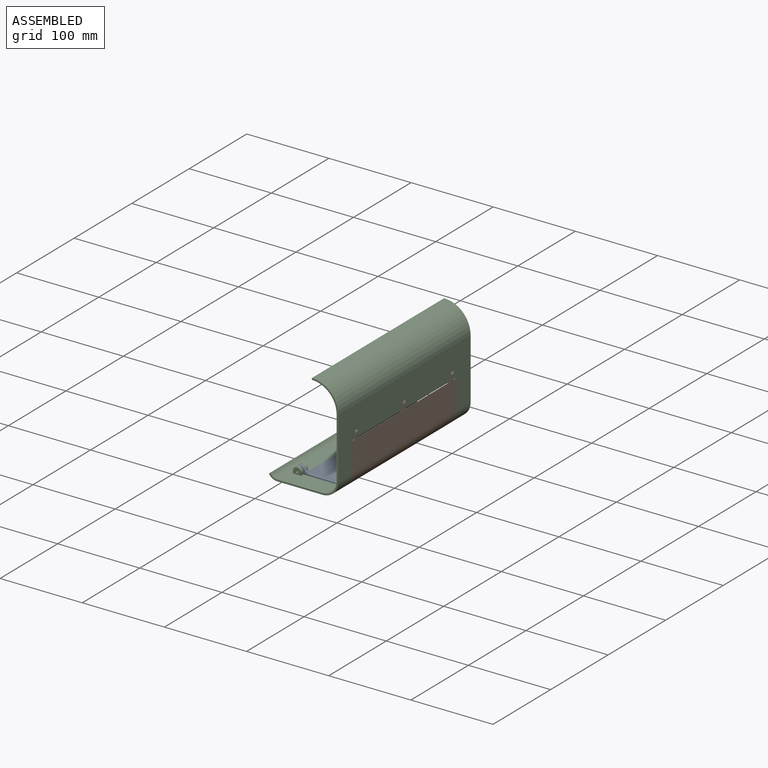
[diagram: assembled view]
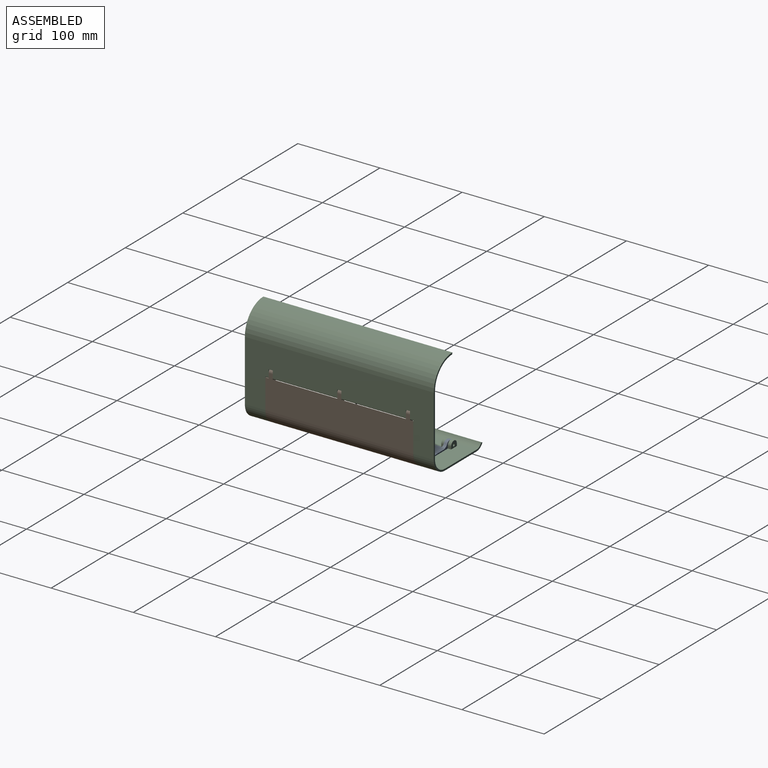
[diagram: assembled view, second angle]
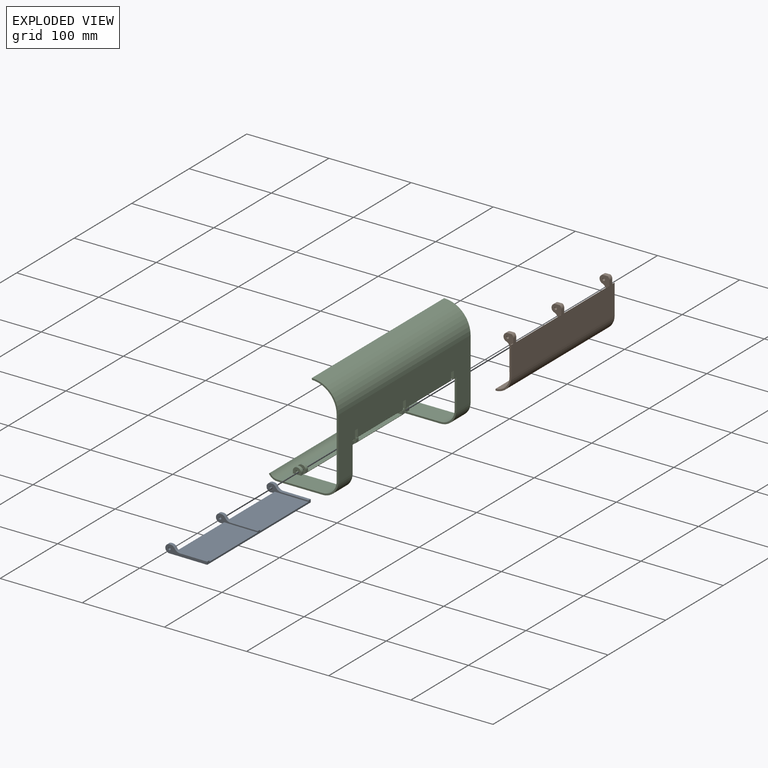
[diagram: exploded view]
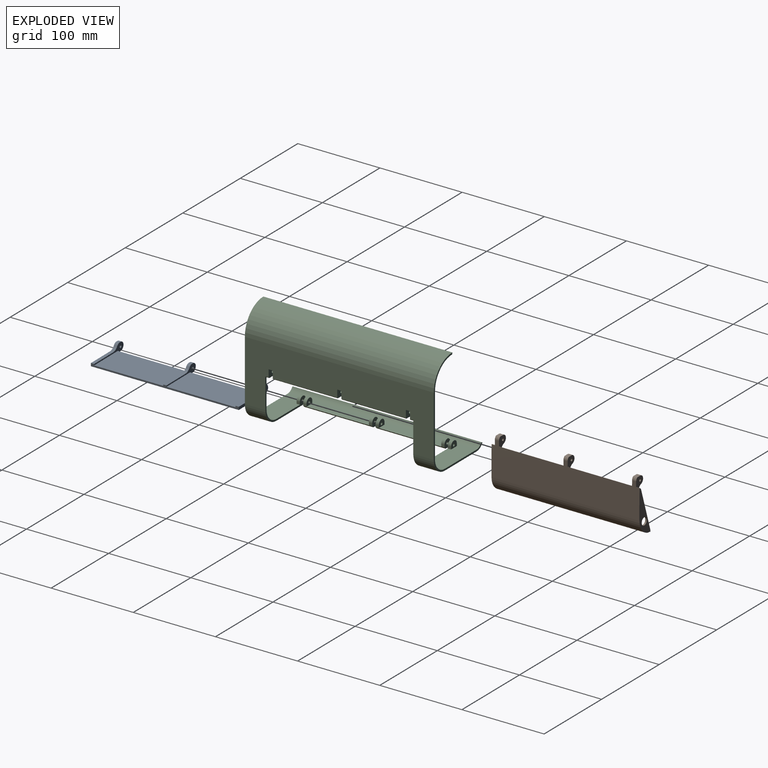
[diagram: exploded view, second angle]
ASSEMBLY  parts=3 mates=2
PART A: 30 faces, bbox 51x180x10 mm
  f0: plane 84x2mm, normal (-1,0,0), area 168mm2, adj f2,f7,f8,f14
  f1: plane 84x2mm, normal (-1,0,0), area 168mm2, adj f9,f12,f14,f15
  f2: plane 51x10mm, normal (0,-1,0), area 154.7mm2, adj f0,f3,f5,f6,f7,f14,f20,f23
  f3: plane 180x3.5mm, normal (1,0,0), area 378mm2, adj f2,f4,f5,f7,f8,f9,f11,f12
  f4: plane 51x10mm, normal (0,1,0), area 236.7mm2, adj f3,f5,f6,f14,f20,f23,f26,f29
  f5: plane 33.14x4mm, normal (0,0,1), area 132.6mm2, adj f2,f3,f4,f20
  f6: plane 4x1.6mm, normal (0,0,1), area 6.4mm2, adj f2,f4,f23,f29
  f7: plane 84x41mm, normal (0,0,1), area 3444mm2, adj f0,f2,f3,f8
  f8: plane 51x10mm, normal (0,1,0), area 154.7mm2, adj f0,f3,f7,f10,f11,f14,f19,f22
  f9: plane 51x10mm, normal (0,-1,0), area 154.7mm2, adj f1,f3,f10,f11,f12,f14,f19,f22
  f10: plane 4x1.6mm, normal (0,0,1), area 6.4mm2, adj f8,f9,f22,f28
  f11: plane 33.14x4mm, normal (0,0,1), area 132.6mm2, adj f3,f8,f9,f19
  f12: plane 84x41mm, normal (0,0,1), area 3444mm2, adj f1,f3,f9,f15
  f13: plane 51x10mm, normal (0,-1,0), area 236.7mm2, adj f3,f14,f16,f17,f18,f21,f24,f27
  f14: plane 180x46mm, normal (0,0,-1), area 7440mm2, adj f0,f1,f2,f3,f4,f8,f9,f13
  f15: plane 51x10mm, normal (0,1,0), area 154.7mm2, adj f1,f3,f12,f14,f16,f17,f18,f21
  f16: plane 4x1.6mm, normal (0,0,1), area 6.4mm2, adj f13,f15,f21,f27
  f17: plane 33.14x4mm, normal (0,0,1), area 132.6mm2, adj f3,f13,f15,f18
  f18: cylinder r=8mm len=6.93mm, axis (0,1,0), area 33.5mm2, adj f13,f15,f17,f27
  f19: cylinder r=8mm len=6.93mm, axis (0,1,0), area 33.5mm2, adj f8,f9,f11,f28
  f20: cylinder r=8mm len=6.93mm, axis (0,1,0), area 33.5mm2, adj f2,f4,f5,f29
  f21: cylinder r=5mm len=10mm, axis (0,1,0), area 62.8mm2, adj f13,f14,f15,f16
  f22: cylinder r=5mm len=10mm, axis (0,1,0), area 62.8mm2, adj f8,f9,f10,f14
  f23: cylinder r=5mm len=10mm, axis (0,1,0), area 62.8mm2, adj f2,f4,f6,f14
  f24: cylinder r=1.5mm len=4mm, axis (0,-1,0), area 37.7mm2, adj f13,f15
  f25: cylinder r=1.5mm len=4mm, axis (0,-1,0), area 37.7mm2, adj f8,f9
  f26: cylinder r=1.5mm len=4mm, axis (0,-1,0), area 37.7mm2, adj f2,f4
  f27: cylinder r=5mm len=4.33mm, axis (0,1,0), area 20.9mm2, adj f13,f15,f16,f18
  f28: cylinder r=5mm len=4.33mm, axis (0,1,0), area 20.9mm2, adj f8,f9,f10,f19
  f29: cylinder r=5mm len=4.33mm, axis (0,1,0), area 20.9mm2, adj f2,f4,f6,f20
PART B: 52 faces, bbox 19x180x65 mm
  f0: plane 78.5x32mm, normal (-1,0,0), area 2512mm2, adj f3,f13,f15,f41
  f1: plane 78.5x32mm, normal (-1,0,0), area 2512mm2, adj f3,f16,f17,f34
  f2: plane 35x4mm, normal (-1,0,0), area 140mm2, adj f3,f7,f14,f50
  f3: cylinder r=17mm len=178mm, axis (0,1,0), area 4628.3mm2, adj f0,f1,f2,f6,f7,f10,f13,f14
  f4: plane 78.5x0.15mm, normal (0,0,1), area 11.7mm2, adj f8,f16,f17,f49
  f5: plane 78.5x0.15mm, normal (0,0,1), area 11.7mm2, adj f8,f13,f15,f48
  f6: plane 34.62x2mm, normal (-1,0,0), area 69.2mm2, adj f3,f18,f24,f51
  f7: plane 55x19mm, normal (0,-1,0), area 128mm2, adj f2,f3,f8,f10,f11,f12,f50
  f8: plane 180x42mm, normal (1,0,0), area 6570mm2, adj f4,f5,f7,f9,f11,f12,f13,f14
  f9: plane 55x19mm, normal (0,1,0), area 451.7mm2, adj f8,f10,f12,f22,f23,f51
  f10: plane 180x2mm, normal (-1,0,0), area 360mm2, adj f3,f7,f9,f12,f22
  f11: plane 4x1mm, normal (0,0,1), area 4mm2, adj f7,f8,f14,f50
  f12: cylinder r=19mm len=180mm, axis (0,1,0), area 5372.1mm2, adj f7,f8,f9,f10
  f13: plane 54x12mm, normal (0,1,0), area 191.1mm2, adj f0,f3,f5,f8,f21,f27,f41,f42
  f14: plane 54x12mm, normal (0,-1,0), area 189.8mm2, adj f2,f3,f8,f11,f21,f27,f42,f43
  f15: plane 54x12mm, normal (0,-1,0), area 191.1mm2, adj f0,f3,f5,f8,f20,f26,f35,f36
  f16: plane 54x12mm, normal (0,1,0), area 191.1mm2, adj f1,f3,f4,f8,f20,f26,f34,f35
  f17: plane 54x12mm, normal (0,-1,0), area 191.1mm2, adj f1,f3,f4,f8,f19,f25,f28,f29
  f18: plane 54x12mm, normal (0,1,0), area 190.4mm2, adj f3,f6,f8,f19,f25,f28,f29,f30
  f19: cylinder r=5mm len=5mm, axis (0,1,0), area 23.2mm2, adj f8,f17,f18,f28
  f20: cylinder r=5mm len=5mm, axis (0,1,0), area 23.2mm2, adj f8,f15,f16,f35
  f21: cylinder r=5mm len=5mm, axis (0,-1,0), area 23.2mm2, adj f8,f13,f14,f42
  f22: plane 49.84x15.99mm, normal (-0.95,0,0.31), area 104.7mm2, adj f9,f10,f24,f51
  f23: cylinder r=4.5mm len=9mm, axis (0,1,0), area 56.5mm2, adj f9,f24
  f24: plane 51.62x17mm, normal (0,-1,0), area 324.3mm2, adj f3,f6,f22,f23,f51
  f25: plane 38.33x5mm, normal (-1,0,0), area 191.7mm2, adj f3,f17,f18,f31
  f26: plane 38.33x5mm, normal (-1,0,0), area 191.7mm2, adj f3,f15,f16,f38
  f27: plane 38.33x5mm, normal (-1,0,0), area 191.7mm2, adj f3,f13,f14,f45
  f28: plane 5x5mm, normal (0,0,1), area 25mm2, adj f17,f18,f19,f29
  f29: cylinder r=5mm len=9.8mm, axis (0,-1,0), area 71.4mm2, adj f17,f18,f28,f30
  f30: cylinder r=5mm len=5mm, axis (0,-1,0), area 16.1mm2, adj f17,f18,f29,f32
  f31: cylinder r=5mm len=5mm, axis (0,-1,0), area 16.1mm2, adj f17,f18,f25,f32
  f32: plane 5x1.07mm, normal (-0.8,0,-0.6), area 6.7mm2, adj f17,f18,f30,f31
  f33: cylinder r=1.5mm len=5mm, axis (0,-1,0), area 47.1mm2, adj f17,f18
  f34: plane 78.5x0.95mm, normal (0,0,-1), area 74.6mm2, adj f1,f16,f17,f49
  f35: plane 5x5mm, normal (0,0,1), area 25mm2, adj f15,f16,f20,f36
  f36: cylinder r=5mm len=9.8mm, axis (0,-1,0), area 71.4mm2, adj f15,f16,f35,f37
  f37: cylinder r=5mm len=5mm, axis (0,-1,0), area 16.1mm2, adj f15,f16,f36,f39
  f38: cylinder r=5mm len=5mm, axis (0,-1,0), area 16.1mm2, adj f15,f16,f26,f39
  f39: plane 5x1.07mm, normal (-0.8,0,-0.6), area 6.7mm2, adj f15,f16,f37,f38
  f40: cylinder r=1.5mm len=5mm, axis (0,-1,0), area 47.1mm2, adj f15,f16
  f41: plane 78.5x0.95mm, normal (0,0,-1), area 74.6mm2, adj f0,f13,f15,f48
  f42: plane 5x5mm, normal (0,0,1), area 25mm2, adj f13,f14,f21,f43
  f43: cylinder r=5mm len=9.8mm, axis (0,-1,0), area 71.4mm2, adj f13,f14,f42,f44
  f44: cylinder r=5mm len=5mm, axis (0,-1,0), area 16.1mm2, adj f13,f14,f43,f46
  f45: cylinder r=5mm len=5mm, axis (0,-1,0), area 16.1mm2, adj f13,f14,f27,f46
  f46: plane 5x1.07mm, normal (-0.8,0,-0.6), area 6.7mm2, adj f13,f14,f44,f45
  f47: cylinder r=1.5mm len=5mm, axis (0,-1,0), area 47.1mm2, adj f13,f14
  f48: plane 78.5x4mm, normal (-0.82,0,0.57), area 383.3mm2, adj f5,f13,f15,f41
  f49: plane 78.5x4mm, normal (-0.82,0,0.57), area 383.3mm2, adj f4,f16,f17,f34
  f50: plane 4x1mm, normal (-0.71,0,0.71), area 5.7mm2, adj f2,f7,f11,f14
  f51: cylinder r=5mm len=4mm, axis (0,-1,0), area 13.9mm2, adj f6,f8,f9,f18,f22,f24
PART C: 98 faces, bbox 84.5x230x125 mm
  f0: plane 4x3mm, normal (1,0,0), area 12mm2, adj f63,f64,f85,f97
  f1: plane 4x3mm, normal (1,0,0), area 12mm2, adj f69,f70,f87,f96
  f2: plane 230x55.16mm, normal (0,0,1), area 4947mm2, adj f13,f14,f15,f20,f22,f23,f24,f64
  f3: plane 4x3mm, normal (1,0,0), area 12mm2, adj f72,f74,f88,f96
  f4: plane 4x3mm, normal (1,0,0), area 12mm2, adj f66,f68,f86,f97
  f5: plane 230x55.16mm, normal (0,0,-1), area 4851mm2, adj f11,f12,f15,f18,f22,f23,f24,f63
  f6: plane 230x74mm, normal (-1,0,0), area 10030mm2, adj f7,f8,f13,f14,f15,f21,f22,f23
  f7: plane 78.5x6mm, normal (0,0,-1), area 118.5mm2, adj f6,f28,f29,f30,f31,f40,f42,f61
  f8: plane 78.5x6mm, normal (0,0,-1), area 118.5mm2, adj f6,f32,f33,f34,f35,f44,f46,f60
  f9: plane 6x4mm, normal (0,0,-1), area 24mm2, adj f24,f36,f37,f48,f59
  f10: plane 230x74mm, normal (1,0,0), area 10225mm2, adj f11,f12,f15,f17,f22,f23,f24,f26
  f11: cylinder r=19mm len=25mm, axis (0,1,0), area 746.1mm2, adj f5,f10,f15,f23
  f12: cylinder r=19mm len=25mm, axis (0,1,0), area 746.1mm2, adj f5,f10,f22,f24
  f13: cylinder r=17mm len=25mm, axis (0,1,0), area 667.6mm2, adj f2,f6,f15,f23
  f14: cylinder r=17mm len=25mm, axis (0,1,0), area 667.6mm2, adj f2,f6,f22,f24
  f15: plane 125x84.53mm, normal (0,-1,0), area 435.3mm2, adj f2,f5,f6,f10,f11,f13,f16,f17
  f16: cylinder r=140mm len=230mm, axis (0,1,0), area 462.5mm2, adj f15,f17,f21,f22
  f17: cylinder r=32mm len=230mm, axis (0,1,0), area 11610.6mm2, adj f10,f15,f16,f22
  f18: cylinder r=12mm len=230mm, axis (0,1,0), area 2881.8mm2, adj f5,f15,f19,f22
  f19: extruded ~230x1.8mm, area 461.3mm2, adj f15,f18,f20,f22
  f20: cylinder r=10mm len=230mm, axis (0,1,0), area 2369.7mm2, adj f2,f15,f19,f22
  f21: cylinder r=30mm len=230mm, axis (0,1,0), area 10838.5mm2, adj f6,f15,f16,f22
  f22: plane 125x84.53mm, normal (0,1,0), area 435.3mm2, adj f2,f5,f6,f10,f12,f14,f16,f17
  f23: plane 70x56mm, normal (0,1,0), area 293.2mm2, adj f2,f5,f6,f10,f11,f13,f25,f62
  f24: plane 70x56mm, normal (0,-1,0), area 293.2mm2, adj f2,f5,f6,f9,f10,f12,f14,f59
  f25: plane 6x4mm, normal (0,0,-1), area 24mm2, adj f23,f26,f27,f38,f62
  f26: plane 15x12mm, normal (0,1,0), area 107.1mm2, adj f6,f10,f25,f38,f39,f52,f58,f62
  f27: plane 15x10mm, normal (0,-1,0), area 87.6mm2, adj f6,f25,f38,f39,f58
  f28: plane 15x12mm, normal (0,-1,0), area 107.1mm2, adj f6,f7,f10,f40,f41,f52,f57,f61
  f29: plane 15x10mm, normal (0,1,0), area 87.6mm2, adj f6,f7,f40,f41,f57
  f30: plane 15x12mm, normal (0,1,0), area 107.1mm2, adj f6,f7,f10,f42,f43,f51,f56,f61
  f31: plane 15x10mm, normal (0,-1,0), area 87.6mm2, adj f6,f7,f42,f43,f56
  f32: plane 15x12mm, normal (0,-1,0), area 107.1mm2, adj f6,f8,f10,f44,f45,f51,f55,f60
  f33: plane 15x10mm, normal (0,1,0), area 87.6mm2, adj f6,f8,f44,f45,f55
  f34: plane 15x12mm, normal (0,1,0), area 107.1mm2, adj f6,f8,f10,f46,f47,f50,f54,f60
  f35: plane 15x10mm, normal (0,-1,0), area 87.6mm2, adj f6,f8,f46,f47,f54
  f36: plane 15x10mm, normal (0,1,0), area 87.6mm2, adj f6,f9,f48,f49,f53
  f37: plane 15x12mm, normal (0,-1,0), area 107.1mm2, adj f6,f9,f10,f48,f49,f50,f53,f59
  f38: cylinder r=5mm len=10mm, axis (0,1,0), area 62.8mm2, adj f25,f26,f27,f39
  f39: cylinder r=5mm len=5mm, axis (0,1,0), area 31.4mm2, adj f6,f26,f27,f38
  f40: cylinder r=5mm len=10mm, axis (0,1,0), area 62.8mm2, adj f7,f28,f29,f41
  f41: cylinder r=5mm len=5mm, axis (0,1,0), area 31.4mm2, adj f6,f28,f29,f40
  f42: cylinder r=5mm len=10mm, axis (0,1,0), area 62.8mm2, adj f7,f30,f31,f43
  f43: cylinder r=5mm len=5mm, axis (0,1,0), area 31.4mm2, adj f6,f30,f31,f42
  f44: cylinder r=5mm len=10mm, axis (0,1,0), area 62.8mm2, adj f8,f32,f33,f45
  f45: cylinder r=5mm len=5mm, axis (0,1,0), area 31.4mm2, adj f6,f32,f33,f44
  f46: cylinder r=5mm len=10mm, axis (0,1,0), area 62.8mm2, adj f8,f34,f35,f47
  f47: cylinder r=5mm len=5mm, axis (0,1,0), area 31.4mm2, adj f6,f34,f35,f46
  f48: cylinder r=5mm len=10mm, axis (0,1,0), area 62.8mm2, adj f9,f36,f37,f49
  f49: cylinder r=5mm len=5mm, axis (0,1,0), area 31.4mm2, adj f6,f36,f37,f48
  f50: plane 5x2mm, normal (0,0,-1), area 10mm2, adj f6,f10,f34,f37
  f51: plane 5x2mm, normal (0,0,-1), area 10mm2, adj f6,f10,f30,f32
  f52: plane 5x2mm, normal (0,0,-1), area 10mm2, adj f6,f10,f26,f28
  f53: cylinder r=1.5mm len=4mm, axis (0,-1,0), area 37.7mm2, adj f36,f37
  f54: cylinder r=1.5mm len=4mm, axis (0,-1,0), area 37.7mm2, adj f34,f35
  f55: cylinder r=1.5mm len=4mm, axis (0,-1,0), area 37.7mm2, adj f32,f33
  f56: cylinder r=1.5mm len=4mm, axis (0,-1,0), area 37.7mm2, adj f30,f31
  f57: cylinder r=1.5mm len=4mm, axis (0,-1,0), area 37.7mm2, adj f28,f29
  f58: cylinder r=1.5mm len=4mm, axis (0,-1,0), area 37.7mm2, adj f26,f27
  f59: plane 4x1mm, normal (0.71,0,-0.71), area 5.7mm2, adj f9,f10,f24,f37
  f60: plane 78.5x1mm, normal (0.71,0,-0.71), area 111mm2, adj f8,f10,f32,f34
  f61: plane 78.5x1mm, normal (0.71,0,-0.71), area 111mm2, adj f7,f10,f28,f30
  f62: plane 4x1mm, normal (0.71,0,-0.71), area 5.7mm2, adj f10,f23,f25,f26
  f63: plane 10x10mm, normal (0,-1,0), area 80.2mm2, adj f0,f5,f65,f81,f85,f95,f97
  f64: plane 10x8mm, normal (0,1,0), area 62.2mm2, adj f0,f2,f65,f85,f95
  f65: plane 4x3mm, normal (-1,0,0), area 12mm2, adj f2,f63,f64,f85
  f66: plane 10x10mm, normal (0,1,0), area 80.2mm2, adj f4,f5,f67,f82,f86,f94,f97
  f67: plane 4x3mm, normal (-1,0,0), area 12mm2, adj f2,f66,f68,f86
  f68: plane 10x8mm, normal (0,-1,0), area 62.2mm2, adj f2,f4,f67,f86,f94
  f69: plane 10x10mm, normal (0,-1,0), area 80.2mm2, adj f1,f5,f71,f82,f87,f93,f96
  f70: plane 10x8mm, normal (0,1,0), area 62.2mm2, adj f1,f2,f71,f87,f93
  f71: plane 4x3mm, normal (-1,0,0), area 12mm2, adj f2,f69,f70,f87
  f72: plane 10x10mm, normal (0,1,0), area 80.2mm2, adj f3,f5,f73,f83,f88,f92,f96
  f73: plane 4x3mm, normal (-1,0,0), area 12mm2, adj f2,f72,f74,f88
  f74: plane 10x8mm, normal (0,-1,0), area 62.2mm2, adj f2,f3,f73,f88,f92
  f75: plane 4x3mm, normal (-1,0,0), area 12mm2, adj f2,f24,f77,f89
  f76: plane 4x3mm, normal (1,0,0), area 12mm2, adj f2,f24,f77,f89
  f77: plane 10x8mm, normal (0,1,0), area 62.2mm2, adj f2,f75,f76,f89,f91
  f78: plane 4x3mm, normal (1,0,0), area 12mm2, adj f2,f23,f80,f84
  f79: plane 4x3mm, normal (-1,0,0), area 12mm2, adj f2,f23,f80,f84
  f80: plane 10x8mm, normal (0,-1,0), area 62.2mm2, adj f2,f78,f79,f84,f90
  f81: plane 4x2mm, normal (1,0,0), area 8mm2, adj f2,f5,f23,f63
  f82: plane 4x2mm, normal (1,0,0), area 8mm2, adj f2,f5,f66,f69
  f83: plane 4x2mm, normal (1,0,0), area 8mm2, adj f2,f5,f24,f72
  f84: cylinder r=5mm len=10mm, axis (0,-1,0), area 62.8mm2, adj f23,f78,f79,f80
  f85: cylinder r=5mm len=10mm, axis (0,1,0), area 62.8mm2, adj f0,f63,f64,f65
  f86: cylinder r=5mm len=10mm, axis (0,1,0), area 62.8mm2, adj f4,f66,f67,f68
  f87: cylinder r=5mm len=10mm, axis (0,1,0), area 62.8mm2, adj f1,f69,f70,f71
  f88: cylinder r=5mm len=10mm, axis (0,1,0), area 62.8mm2, adj f3,f72,f73,f74
  f89: cylinder r=5mm len=10mm, axis (0,1,0), area 62.8mm2, adj f24,f75,f76,f77
  f90: cylinder r=1.5mm len=4mm, axis (0,-1,0), area 37.7mm2, adj f23,f80
  f91: cylinder r=1.5mm len=4mm, axis (0,-1,0), area 37.7mm2, adj f24,f77
  f92: cylinder r=1.5mm len=4mm, axis (0,-1,0), area 37.7mm2, adj f72,f74
  f93: cylinder r=1.5mm len=4mm, axis (0,-1,0), area 37.7mm2, adj f69,f70
  f94: cylinder r=1.5mm len=4mm, axis (0,-1,0), area 37.7mm2, adj f66,f68
  f95: cylinder r=1.5mm len=4mm, axis (0,-1,0), area 37.7mm2, adj f63,f64
  f96: plane 84x2mm, normal (0.71,0,-0.71), area 237.6mm2, adj f1,f2,f3,f5,f69,f72
  f97: plane 84x2mm, normal (0.71,0,-0.71), area 237.6mm2, adj f0,f2,f4,f5,f63,f66
PLACE A rot(axis=(0,1,0),0.4deg) t=(-181.4,339.72,-140.53)mm
PLACE B rot(axis=(0,-1,0),0.1deg) t=(-182.03,339.72,-141.48)mm
PLACE C t=(-182,339.72,-141.24)mm fixed
MATE revolute C.f38 <-> B.f29  axis (0,-1,0) through (-32.12,-60.85,-162.8)mm
MATE revolute A.f21 <-> C.f84  axis (0,-1,0) through (-90.12,-60.85,-217.8)mm
